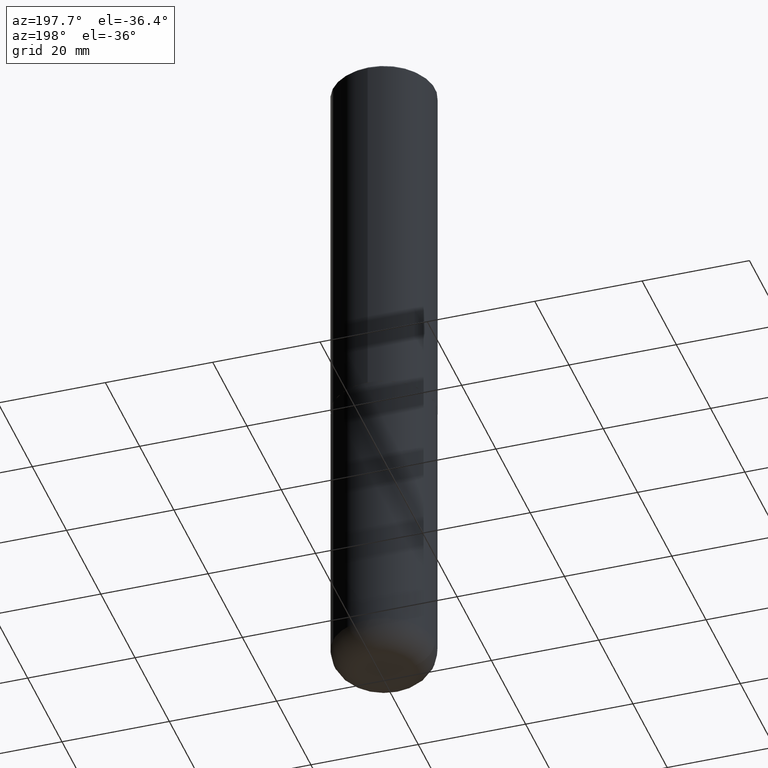
[diagram: clean part render]
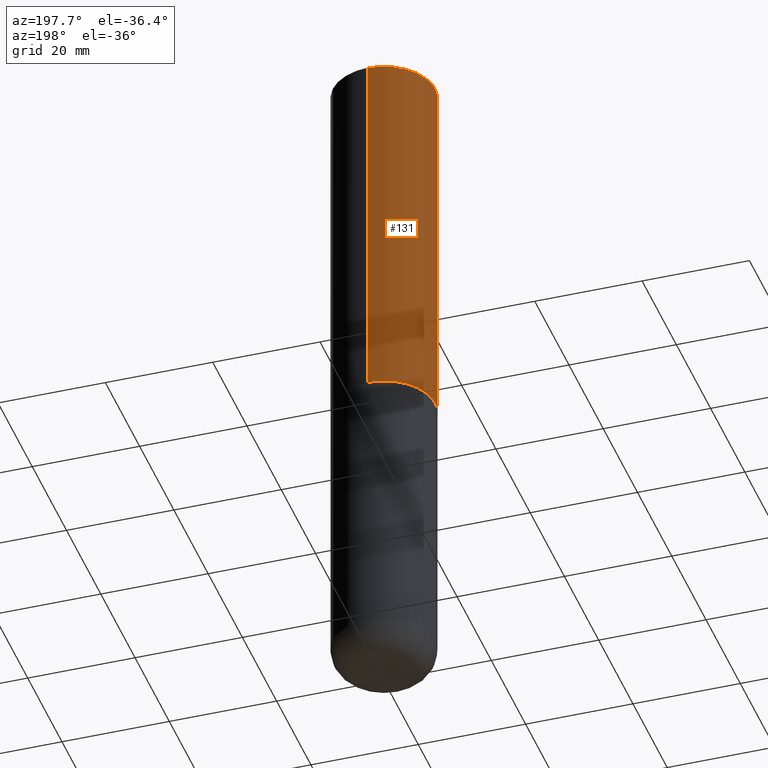
[diagram: same view with one face highlighted and labeled with its STEP entity id]
A machine part, auxiliary view. The second image highlights one B-rep face of the part: STEP entity #131.
In plain terms, the highlighted cylindrical surface (partial cylindrical patch) has radius 9.525 mm, axis along (-0, 0, 1).
Its self-contained STEP definition (entity closure, byte-faithful):
#1 = CYLINDRICAL_SURFACE ( 'NONE', #3, 0.3750000000000002220 ) ;
#3 = AXIS2_PLACEMENT_3D ( 'NONE', #138, #395, #107 ) ;
#12 = CARTESIAN_POINT ( 'NONE',  ( -2.618611004132351594E-15, -0.3750000000000002220, 1.308998548422625521E-15 ) ) ;
#26 = EDGE_CURVE ( 'NONE', #130, #416, #362, .T. ) ;
#59 = VERTEX_POINT ( 'NONE', #333 ) ;
#62 = AXIS2_PLACEMENT_3D ( 'NONE', #120, #177, #251 ) ;
#66 = LINE ( 'NONE', #12, #245 ) ;
#68 = DIRECTION ( 'NONE',  ( -2.446040391741596606E-29, 3.490662795793665557E-15, 1.000000000000000000 ) ) ;
#76 = EDGE_CURVE ( 'NONE', #59, #370, #66, .T. ) ;
#83 = AXIS2_PLACEMENT_3D ( 'NONE', #189, #125, #381 ) ;
#85 = CARTESIAN_POINT ( 'NONE',  ( -2.572686749164323547E-15, -0.3750000000000001110, -0.01999999999999877570 ) ) ;
#107 = DIRECTION ( 'NONE',  ( -6.982962677686266711E-15, -1.000000000000000000, 3.490662795793665951E-15 ) ) ;
#120 = CARTESIAN_POINT ( 'NONE',  ( 6.724165036897648492E-29, -9.595832025636787455E-15, -2.749000000000000110 ) ) ;
#125 = DIRECTION ( 'NONE',  ( -2.446040391741596606E-29, 3.490662795793665557E-15, 1.000000000000000000 ) ) ;
#130 = VERTEX_POINT ( 'NONE', #295 ) ;
#131 = ADVANCED_FACE ( 'NONE', ( #140 ), #1, .T. ) ;
#138 = CARTESIAN_POINT ( 'NONE',  ( 0.000000000000000000, 0.000000000000000000, 0.000000000000000000 ) ) ;
#140 = FACE_OUTER_BOUND ( 'NONE', #262, .T. ) ;
#168 = DIRECTION ( 'NONE',  ( -2.446040391741596606E-29, 3.490662795793665557E-15, 1.000000000000000000 ) ) ;
#177 = DIRECTION ( 'NONE',  ( -2.446040391741596606E-29, 3.490662795793665557E-15, 1.000000000000000000 ) ) ;
#189 = CARTESIAN_POINT ( 'NONE',  ( 4.892080783483214581E-31, -6.981325591587361238E-17, -0.02000000000000008715 ) ) ;
#224 = ORIENTED_EDGE ( 'NONE', *, *, #76, .T. ) ;
#245 = VECTOR ( 'NONE', #168, 39.37007874015748143 ) ;
#251 = DIRECTION ( 'NONE',  ( -6.982962677686265922E-15, -1.000000000000000000, 2.913971193241877611E-15 ) ) ;
#262 = EDGE_LOOP ( 'NONE', ( #386, #315, #224, #388 ) ) ;
#276 = EDGE_CURVE ( 'NONE', #130, #59, #378, .T. ) ;
#295 = CARTESIAN_POINT ( 'NONE',  ( 2.664535259100411196E-15, 0.3749999999999907296, -2.749000000000000998 ) ) ;
#303 = VECTOR ( 'NONE', #68, 39.37007874015748143 ) ;
#315 = ORIENTED_EDGE ( 'NONE', *, *, #276, .T. ) ;
#333 = CARTESIAN_POINT ( 'NONE',  ( -2.618611004132284935E-15, -0.3750000000000099920, -2.748999999999999222 ) ) ;
#362 = LINE ( 'NONE', #368, #303 ) ;
#368 = CARTESIAN_POINT ( 'NONE',  ( 2.664535259100376880E-15, 0.3750000000000002220, -1.308998548422625521E-15 ) ) ;
#370 = VERTEX_POINT ( 'NONE', #85 ) ;
#373 = EDGE_CURVE ( 'NONE', #416, #370, #404, .T. ) ;
#378 = CIRCLE ( 'NONE', #62, 0.3750000000000003886 ) ;
#381 = DIRECTION ( 'NONE',  ( -6.982962677686265922E-15, -1.000000000000000000, 3.494488891895536035E-15 ) ) ;
#383 = CARTESIAN_POINT ( 'NONE',  ( 2.618611004132350411E-15, 0.3749999999999999445, -0.02000000000000139513 ) ) ;
#386 = ORIENTED_EDGE ( 'NONE', *, *, #26, .F. ) ;
#388 = ORIENTED_EDGE ( 'NONE', *, *, #373, .F. ) ;
#395 = DIRECTION ( 'NONE',  ( -2.446040391741596606E-29, 3.490662795793665557E-15, 1.000000000000000000 ) ) ;
#404 = CIRCLE ( 'NONE', #83, 0.3750000000000000555 ) ;
#416 = VERTEX_POINT ( 'NONE', #383 ) ;